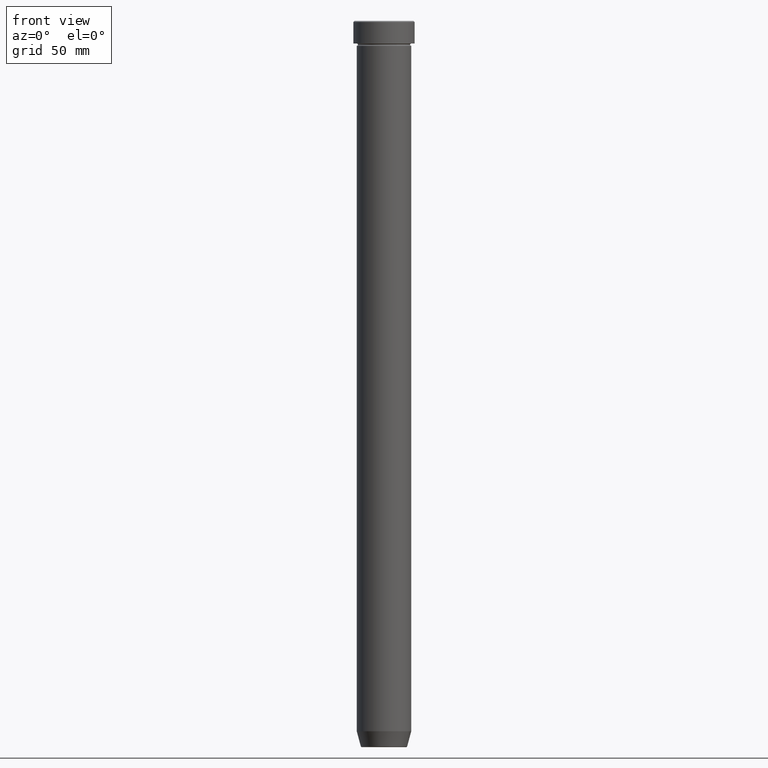
[diagram: clean part render]
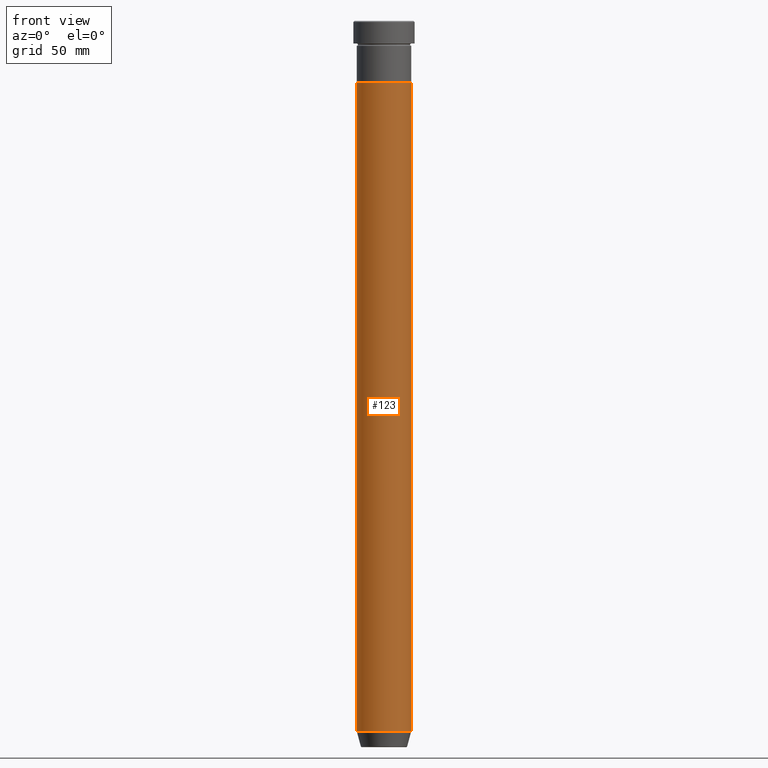
[diagram: same view with one face highlighted and labeled with its STEP entity id]
A machine part, front view. The second image highlights one B-rep face of the part: STEP entity #123.
In plain terms, the highlighted cylindrical surface (edge-blend (fillet) strip) has radius 12 mm, axis along (-0, -0, 1).
Its self-contained STEP definition (entity closure, byte-faithful):
#9 = CARTESIAN_POINT ( 'NONE',  ( 0.000000000000000000, 0.000000000000000000, -27.00000000000000000 ) ) ;
#24 = CARTESIAN_POINT ( 'NONE',  ( -12.00000000000000000, 1.469576158976823947E-15, -27.00000000000000000 ) ) ;
#32 = VERTEX_POINT ( 'NONE', #337 ) ;
#58 = CARTESIAN_POINT ( 'NONE',  ( 12.00000000000000000, 0.000000000000000000, 0.000000000000000000 ) ) ;
#65 = ORIENTED_EDGE ( 'NONE', *, *, #515, .T. ) ;
#68 = LINE ( 'NONE', #442, #350 ) ;
#77 = EDGE_LOOP ( 'NONE', ( #83, #485, #65, #592 ) ) ;
#83 = ORIENTED_EDGE ( 'NONE', *, *, #327, .F. ) ;
#123 = ADVANCED_FACE ( 'NONE', ( #406 ), #268, .T. ) ;
#130 = CARTESIAN_POINT ( 'NONE',  ( -12.00000000000000000, 1.469576158976823947E-15, -313.0000000000000000 ) ) ;
#174 = VECTOR ( 'NONE', #434, 1000.000000000000000 ) ;
#215 = DIRECTION ( 'NONE',  ( 1.000000000000000000, 0.000000000000000000, 0.000000000000000000 ) ) ;
#216 = DIRECTION ( 'NONE',  ( -0.000000000000000000, -0.000000000000000000, 1.000000000000000000 ) ) ;
#233 = AXIS2_PLACEMENT_3D ( 'NONE', #258, #216, #306 ) ;
#258 = CARTESIAN_POINT ( 'NONE',  ( 0.000000000000000000, 0.000000000000000000, -313.0000000000000000 ) ) ;
#268 = CYLINDRICAL_SURFACE ( 'NONE', #282, 12.00000000000000000 ) ;
#282 = AXIS2_PLACEMENT_3D ( 'NONE', #590, #540, #316 ) ;
#294 = EDGE_CURVE ( 'NONE', #407, #469, #457, .T. ) ;
#306 = DIRECTION ( 'NONE',  ( 1.000000000000000000, 0.000000000000000000, 0.000000000000000000 ) ) ;
#316 = DIRECTION ( 'NONE',  ( 1.000000000000000000, 0.000000000000000000, 0.000000000000000000 ) ) ;
#317 = EDGE_CURVE ( 'NONE', #436, #32, #520, .T. ) ;
#327 = EDGE_CURVE ( 'NONE', #407, #436, #68, .T. ) ;
#337 = CARTESIAN_POINT ( 'NONE',  ( 12.00000000000000000, 0.000000000000000000, -27.00000000000000000 ) ) ;
#350 = VECTOR ( 'NONE', #574, 1000.000000000000000 ) ;
#351 = DIRECTION ( 'NONE',  ( -0.000000000000000000, -0.000000000000000000, 1.000000000000000000 ) ) ;
#390 = LINE ( 'NONE', #58, #174 ) ;
#406 = FACE_OUTER_BOUND ( 'NONE', #77, .T. ) ;
#407 = VERTEX_POINT ( 'NONE', #130 ) ;
#434 = DIRECTION ( 'NONE',  ( -0.000000000000000000, -0.000000000000000000, 1.000000000000000000 ) ) ;
#436 = VERTEX_POINT ( 'NONE', #24 ) ;
#438 = CARTESIAN_POINT ( 'NONE',  ( 12.00000000000000000, 0.000000000000000000, -313.0000000000000000 ) ) ;
#442 = CARTESIAN_POINT ( 'NONE',  ( -12.00000000000000000, 1.469576158976823947E-15, 0.000000000000000000 ) ) ;
#457 = CIRCLE ( 'NONE', #233, 12.00000000000000000 ) ;
#469 = VERTEX_POINT ( 'NONE', #438 ) ;
#485 = ORIENTED_EDGE ( 'NONE', *, *, #294, .T. ) ;
#507 = AXIS2_PLACEMENT_3D ( 'NONE', #9, #351, #215 ) ;
#515 = EDGE_CURVE ( 'NONE', #469, #32, #390, .T. ) ;
#520 = CIRCLE ( 'NONE', #507, 12.00000000000000000 ) ;
#540 = DIRECTION ( 'NONE',  ( -0.000000000000000000, -0.000000000000000000, 1.000000000000000000 ) ) ;
#574 = DIRECTION ( 'NONE',  ( -0.000000000000000000, -0.000000000000000000, 1.000000000000000000 ) ) ;
#590 = CARTESIAN_POINT ( 'NONE',  ( 0.000000000000000000, 0.000000000000000000, 0.000000000000000000 ) ) ;
#592 = ORIENTED_EDGE ( 'NONE', *, *, #317, .F. ) ;